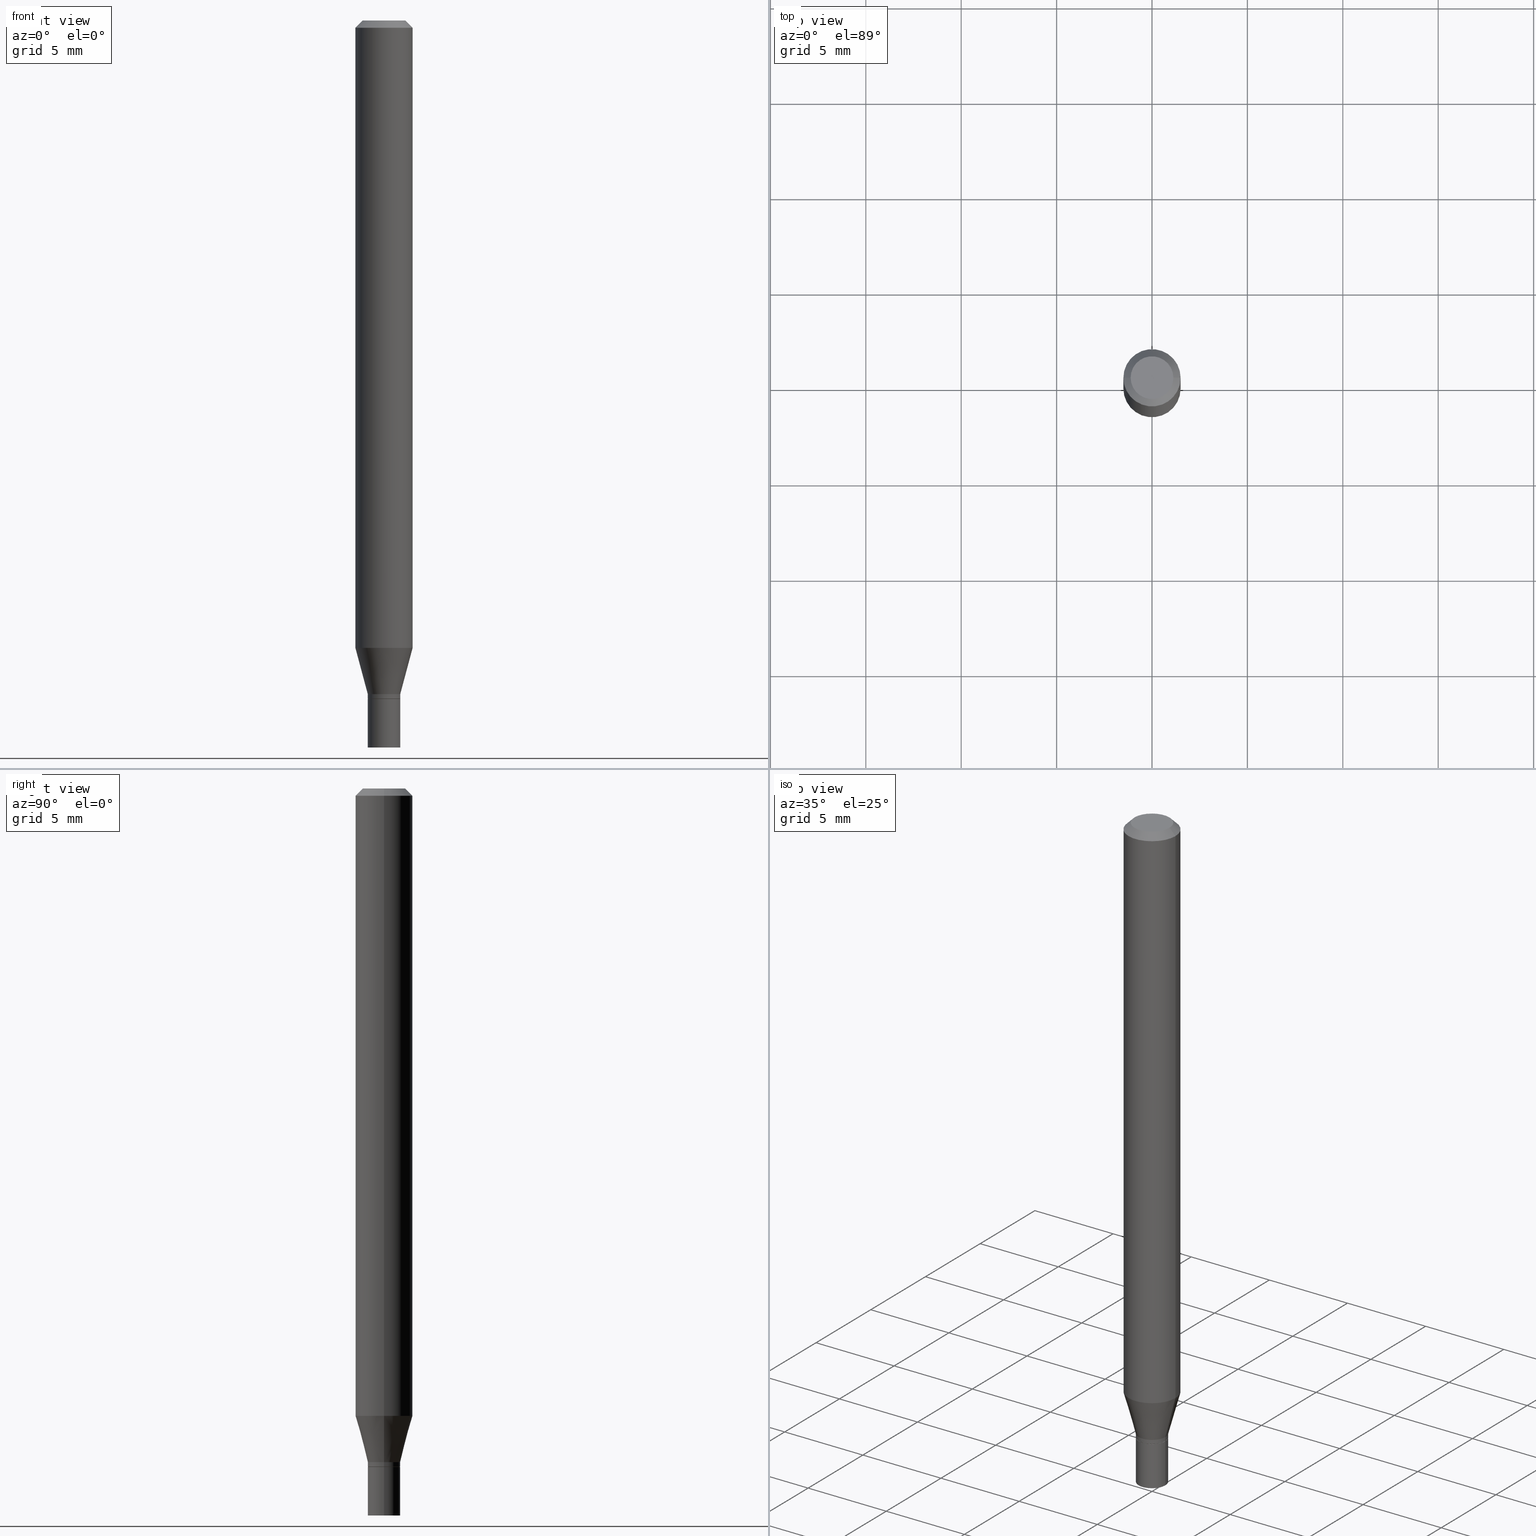
[diagram: canonical four-view strip — front | top / right | iso, engineering-drawing reading convention]
A machine part, canonical four-view strip (front | top / right | iso — engineering-drawing reading convention). The complete STEP part file that produces these views, byte-faithful:
ISO-10303-21;
HEADER;
FILE_DESCRIPTION (( 'STEP AP203' ),
    '1' );
FILE_NAME ('09287.STEP',
    '2024-03-14T18:21:10',
    ( '' ),
    ( '' ),
    'SwSTEP 2.0',
    'SolidWorks 2023',
    '' );
FILE_SCHEMA (( 'CONFIG_CONTROL_DESIGN' ));
ENDSEC;

DATA;
#1 = DIRECTION ( 'NONE',  ( 1.000000000000000000, -6.982962677686265922E-15, 4.876176775795935793E-29 ) ) ;
#2 = FACE_OUTER_BOUND ( 'NONE', #123, .T. ) ;
#3 = CONICAL_SURFACE ( 'NONE', #294, 0.05904999999999999832, 0.7853981633974551624 ) ;
#4 = CARTESIAN_POINT ( 'NONE',  ( 3.422678141136716546E-29, -4.886677281844865272E-15, -1.399599999999999733 ) ) ;
#5 = PRODUCT_DEFINITION_SHAPE ( 'NONE', 'NONE',  #29 ) ;
#6 = DIRECTION ( 'NONE',  ( 1.000000000000000000, -6.982962677686279332E-15, 0.000000000000000000 ) ) ;
#7 = DIRECTION ( 'NONE',  ( 1.000000000000000000, -6.982962677686265922E-15, 4.876176775795935793E-29 ) ) ;
#8 = AXIS2_PLACEMENT_3D ( 'NONE', #343, #232, #301 ) ;
#9 = FACE_OUTER_BOUND ( 'NONE', #315, .T. ) ;
#10 = CC_DESIGN_APPROVAL ( #362, ( #35 ) ) ;
#11 = CARTESIAN_POINT ( 'NONE',  ( 3.668203209277705088E-31, -5.237222008264718399E-17, -0.01499999999999999944 ) ) ;
#12 = VERTEX_POINT ( 'NONE', #319 ) ;
#13 = LINE ( 'NONE', #340, #270 ) ;
#14 = PRODUCT ( '09287', '09287', '', ( #283 ) ) ;
#15 = PERSON_AND_ORGANIZATION ( #167, #175 ) ;
#16 = AXIS2_PLACEMENT_3D ( 'NONE', #265, #118, #443 ) ;
#17 = DIRECTION ( 'NONE',  ( 1.000000000000000000, -6.982962677686264344E-15, 0.000000000000000000 ) ) ;
#18 = ORIENTED_EDGE ( 'NONE', *, *, #102, .T. ) ;
#19 = APPROVAL_DATE_TIME ( #57, #362 ) ;
#20 = CARTESIAN_POINT ( 'NONE',  ( 3.075995059520799729E-16, 0.04404999999999999888, -2.547080602766185685E-16 ) ) ;
#21 = ORIENTED_EDGE ( 'NONE', *, *, #159, .F. ) ;
#22 = COORDINATED_UNIVERSAL_TIME_OFFSET ( 5, 0, .BEHIND. ) ;
#23 = CARTESIAN_POINT ( 'NONE',  ( -0.05904999999999999832, -1.866401217467881029E-15, -0.01499999999999999944 ) ) ;
#24 = VERTEX_POINT ( 'NONE', #247 ) ;
#25 = COORDINATED_UNIVERSAL_TIME_OFFSET ( 5, 0, .BEHIND. ) ;
#26 = AXIS2_PLACEMENT_3D ( 'NONE', #164, #97, #386 ) ;
#27 = DIRECTION ( 'NONE',  ( 0.2588190451025211836, 1.565188264969622559E-15, 0.9659258262890679791 ) ) ;
#28 = DIRECTION ( 'NONE',  ( -2.438088387897960049E-29, 3.491481338843145188E-15, 1.000000000000000000 ) ) ;
#29 = PRODUCT_DEFINITION ( 'UNKNOWN', '', #35, #401 ) ;
#30 = ORIENTED_EDGE ( 'NONE', *, *, #466, .T. ) ;
#31 = PLANE ( 'NONE',  #399 ) ;
#32 = ORIENTED_EDGE ( 'NONE', *, *, #235, .T. ) ;
#33 = DIRECTION ( 'NONE',  ( -2.445468806185136597E-29, 3.491481338843145583E-15, 1.000000000000000000 ) ) ;
#34 = AXIS2_PLACEMENT_3D ( 'NONE', #182, #396, #104 ) ;
#35 = PRODUCT_DEFINITION_FORMATION_WITH_SPECIFIED_SOURCE ( 'ANY', '', #14, .NOT_KNOWN. ) ;
#36 = DIRECTION ( 'NONE',  ( 0.7071067811869518049, -2.468850131086492060E-15, 0.7071067811861430075 ) ) ;
#37 = CC_DESIGN_DATE_AND_TIME_ASSIGNMENT ( #246, #84, ( #295 ) ) ;
#38 = CARTESIAN_POINT ( 'NONE',  ( -0.03344999999999965362, -4.615482515880222190E-15, -1.390000000000000124 ) ) ;
#39 = DIRECTION ( 'NONE',  ( 1.000000000000000000, -6.982962677686265133E-15, 0.000000000000000000 ) ) ;
#40 = CIRCLE ( 'NONE', #157, 0.03295000000000000012 ) ;
#41 = AXIS2_PLACEMENT_3D ( 'NONE', #222, #138, #290 ) ;
#42 = DIRECTION ( 'NONE',  ( 1.000000000000000000, -6.982962677686273021E-15, 0.000000000000000000 ) ) ;
#43 = CC_DESIGN_DATE_AND_TIME_ASSIGNMENT ( #50, #312, ( #29 ) ) ;
#44 = DIRECTION ( 'NONE',  ( -2.445468806185136597E-29, 3.491481338843145583E-15, 1.000000000000000000 ) ) ;
#45 = EDGE_CURVE ( 'NONE', #303, #284, #358, .T. ) ;
#46 = CLOSED_SHELL ( 'NONE', ( #354, #196, #257, #300 ) ) ;
#47 = CARTESIAN_POINT ( 'NONE',  ( 3.165560326472339188E-29, -4.519581185785793570E-15, -1.294459499326235941 ) ) ;
#48 = ORIENTED_EDGE ( 'NONE', *, *, #248, .T. ) ;
#49 = CARTESIAN_POINT ( 'NONE',  ( 0.000000000000000000, 0.000000000000000000, 0.000000000000000000 ) ) ;
#50 = DATE_AND_TIME ( #416, #119 ) ;
#51 = ORIENTED_EDGE ( 'NONE', *, *, #316, .F. ) ;
#52 = AXIS2_PLACEMENT_3D ( 'NONE', #421, #243, #285 ) ;
#53 = VECTOR ( 'NONE', #465, 39.37007874015748143 ) ;
#54 = DIRECTION ( 'NONE',  ( 1.000000000000000000, -6.982962677686266711E-15, 0.000000000000000000 ) ) ;
#55 = ORIENTED_EDGE ( 'NONE', *, *, #56, .F. ) ;
#56 = EDGE_CURVE ( 'NONE', #163, #181, #135, .T. ) ;
#57 = DATE_AND_TIME ( #124, #447 ) ;
#58 = ORIENTED_EDGE ( 'NONE', *, *, #76, .F. ) ;
#59 = EDGE_CURVE ( 'NONE', #352, #382, #398, .T. ) ;
#60 = APPROVAL_STATUS ( 'not_yet_approved' ) ;
#61 = DIRECTION ( 'NONE',  ( -2.445468806185136597E-29, 3.491481338843145583E-15, 1.000000000000000000 ) ) ;
#62 = EDGE_LOOP ( 'NONE', ( #387, #211, #402, #251 ) ) ;
#63 = DIRECTION ( 'NONE',  ( -2.445468806185136877E-29, 3.491481338843145188E-15, 1.000000000000000000 ) ) ;
#64 = CIRCLE ( 'NONE', #413, 0.05904999999999999832 ) ;
#65 = ORIENTED_EDGE ( 'NONE', *, *, #236, .T. ) ;
#66 = ORIENTED_EDGE ( 'NONE', *, *, #248, .F. ) ;
#67 = CARTESIAN_POINT ( 'NONE',  ( 0.03345000000000000057, -5.120257383413471916E-15, -1.399599999999999955 ) ) ;
#68 = DIRECTION ( 'NONE',  ( 1.000000000000000000, -6.982962677686265922E-15, 4.888540261209747396E-29 ) ) ;
#69 = CONICAL_SURFACE ( 'NONE', #174, 0.03344999999999965362, 0.2617993877991499074 ) ;
#70 = FACE_OUTER_BOUND ( 'NONE', #460, .T. ) ;
#71 = CARTESIAN_POINT ( 'NONE',  ( 3.399201640597340139E-29, -4.853159060991973192E-15, -1.390000000000000124 ) ) ;
#72 = CARTESIAN_POINT ( 'NONE',  ( 0.03345000000000000057, -5.470802109833324821E-15, -1.500000000000000222 ) ) ;
#73 = CIRCLE ( 'NONE', #437, 0.03345000000000019486 ) ;
#74 = APPLICATION_CONTEXT ( 'configuration controlled 3d designs of mechanical parts and assemblies' ) ;
#75 = DIRECTION ( 'NONE',  ( -2.445468806185136597E-29, 3.491481338843145583E-15, 1.000000000000000000 ) ) ;
#76 = EDGE_CURVE ( 'NONE', #382, #228, #459, .T. ) ;
#77 = ORIENTED_EDGE ( 'NONE', *, *, #159, .T. ) ;
#78 = CYLINDRICAL_SURFACE ( 'NONE', #151, 0.03344999999999992424 ) ;
#79 = ORIENTED_EDGE ( 'NONE', *, *, #347, .T. ) ;
#80 = CC_DESIGN_PERSON_AND_ORGANIZATION_ASSIGNMENT ( #89, #384, ( #35 ) ) ;
#81 = CIRCLE ( 'NONE', #345, 0.05904999999999999832 ) ;
#82 = ORIENTED_EDGE ( 'NONE', *, *, #139, .F. ) ;
#83 = ADVANCED_FACE ( 'NONE', ( #311 ), #207, .F. ) ;
#84 = DATE_TIME_ROLE ( 'classification_date' ) ;
#85 = VERTEX_POINT ( 'NONE', #125 ) ;
#86 = COORDINATED_UNIVERSAL_TIME_OFFSET ( 5, 0, .BEHIND. ) ;
#87 = DIRECTION ( 'NONE',  ( -2.445468806185136877E-29, 3.491481338843145188E-15, 1.000000000000000000 ) ) ;
#88 = ORIENTED_EDGE ( 'NONE', *, *, #322, .F. ) ;
#89 = PERSON_AND_ORGANIZATION ( #167, #175 ) ;
#90 = AXIS2_PLACEMENT_3D ( 'NONE', #195, #224, #7 ) ;
#91 = LOCAL_TIME ( 14, 21, 10.00000000000000000, #22 ) ;
#92 = EDGE_LOOP ( 'NONE', ( #282, #77, #419, #255 ) ) ;
#93 = PERSON_AND_ORGANIZATION_ROLE ( 'creator' ) ;
#94 = CARTESIAN_POINT ( 'NONE',  ( -0.03344999999999965362, -4.357744108099838923E-15, -1.390000000000000124 ) ) ;
#95 = ORIENTED_EDGE ( 'NONE', *, *, #96, .T. ) ;
#96 = EDGE_CURVE ( 'NONE', #346, #12, #40, .T. ) ;
#97 = DIRECTION ( 'NONE',  ( -2.445468806185136597E-29, 3.491481338843145583E-15, 1.000000000000000000 ) ) ;
#98 = ORIENTED_EDGE ( 'NONE', *, *, #148, .F. ) ;
#99 = CONICAL_SURFACE ( 'NONE', #16, 0.03295000000000000012, 0.7853981633980202659 ) ;
#100 = AXIS2_PLACEMENT_3D ( 'NONE', #281, #412, #453 ) ;
#101 = ORIENTED_EDGE ( 'NONE', *, *, #390, .T. ) ;
#102 = EDGE_CURVE ( 'NONE', #228, #183, #200, .T. ) ;
#103 = DIRECTION ( 'NONE',  ( -2.445468806185136597E-29, 3.491481338843145583E-15, 1.000000000000000000 ) ) ;
#104 = DIRECTION ( 'NONE',  ( 1.000000000000000000, -6.982962677686265133E-15, 0.000000000000000000 ) ) ;
#105 = CARTESIAN_POINT ( 'NONE',  ( -0.03344999999999992424, 2.376765451117529739E-16, -1.645383787690262425E-30 ) ) ;
#106 = VECTOR ( 'NONE', #332, 39.37007874015748143 ) ;
#107 = DIRECTION ( 'NONE',  ( -2.445468806185136597E-29, 3.491481338843145583E-15, 1.000000000000000000 ) ) ;
#108 = CC_DESIGN_PERSON_AND_ORGANIZATION_ASSIGNMENT ( #420, #206, ( #295 ) ) ;
#109 = DIRECTION ( 'NONE',  ( 1.000000000000000000, -6.982962677686267499E-15, 4.876176775795936353E-29 ) ) ;
#110 = CARTESIAN_POINT ( 'NONE',  ( -0.03295000000000000012, -4.649904223237801601E-15, -1.399599999999999733 ) ) ;
#111 = UNCERTAINTY_MEASURE_WITH_UNIT (LENGTH_MEASURE( 1.000000000000000082E-05 ), #229, 'distance_accuracy_value', 'NONE');
#112 = DIRECTION ( 'NONE',  ( -2.445468806185136597E-29, 3.491481338843145583E-15, 1.000000000000000000 ) ) ;
#113 = VERTEX_POINT ( 'NONE', #423 ) ;
#114 = FACE_OUTER_BOUND ( 'NONE', #115, .T. ) ;
#115 = EDGE_LOOP ( 'NONE', ( #240, #95, #216, #455 ) ) ;
#116 = VERTEX_POINT ( 'NONE', #94 ) ;
#117 = AXIS2_PLACEMENT_3D ( 'NONE', #380, #176, #276 ) ;
#118 = DIRECTION ( 'NONE',  ( -2.445468806185136597E-29, 3.491481338843145583E-15, 1.000000000000000000 ) ) ;
#119 = LOCAL_TIME ( 14, 21, 10.00000000000000000, #374 ) ;
#120 = ORIENTED_EDGE ( 'NONE', *, *, #148, .T. ) ;
#121 = PERSON_AND_ORGANIZATION ( #167, #175 ) ;
#122 = DIRECTION ( 'NONE',  ( -2.445468806185136597E-29, 3.491481338843145583E-15, 1.000000000000000000 ) ) ;
#123 = EDGE_LOOP ( 'NONE', ( #66, #272, #277, #150 ) ) ;
#124 = CALENDAR_DATE ( 2024, 14, 3 ) ;
#125 = CARTESIAN_POINT ( 'NONE',  ( -0.04404999999999999888, 3.337856159934031180E-16, -2.018166146011582981E-16 ) ) ;
#126 = EDGE_LOOP ( 'NONE', ( #204, #269, #451, #360 ) ) ;
#127 = PERSON_AND_ORGANIZATION_ROLE ( 'design_owner' ) ;
#128 = FACE_OUTER_BOUND ( 'NONE', #379, .T. ) ;
#129 = ORIENTED_EDGE ( 'NONE', *, *, #146, .T. ) ;
#130 = SECURITY_CLASSIFICATION_LEVEL ( 'unclassified' ) ;
#131 = CARTESIAN_POINT ( 'NONE',  ( 3.668203209277704895E-29, -5.237222008264718177E-15, -1.500000000000000222 ) ) ;
#132 = CALENDAR_DATE ( 2024, 14, 3 ) ;
#133 = DIRECTION ( 'NONE',  ( -2.445468806185136877E-29, 3.491481338843145188E-15, 1.000000000000000000 ) ) ;
#134 = ORIENTED_EDGE ( 'NONE', *, *, #56, .T. ) ;
#135 = CIRCLE ( 'NONE', #190, 0.05904999999999999832 ) ;
#136 = CYLINDRICAL_SURFACE ( 'NONE', #335, 0.03344999999999992424 ) ;
#137 = CIRCLE ( 'NONE', #26, 0.03344999999999965362 ) ;
#138 = DIRECTION ( 'NONE',  ( 2.438088387897960049E-29, -3.491481338843145188E-15, -1.000000000000000000 ) ) ;
#139 = EDGE_CURVE ( 'NONE', #116, #303, #309, .T. ) ;
#140 = LINE ( 'NONE', #184, #106 ) ;
#141 = DIRECTION ( 'NONE',  ( -2.445468806185136597E-29, 3.491481338843145583E-15, 1.000000000000000000 ) ) ;
#142 = ADVANCED_FACE ( 'NONE', ( #448 ), #250, .T. ) ;
#143 = AXIS2_PLACEMENT_3D ( 'NONE', #361, #33, #68 ) ;
#144 = DIMENSIONAL_EXPONENTS ( 1.000000000000000000, 0.000000000000000000, 0.000000000000000000, 0.000000000000000000, 0.000000000000000000, 0.000000000000000000, 0.000000000000000000 ) ;
#145 = LINE ( 'NONE', #38, #432 ) ;
#146 = EDGE_CURVE ( 'NONE', #303, #116, #137, .T. ) ;
#147 = LENGTH_MEASURE_WITH_UNIT ( LENGTH_MEASURE( 0.02539999999999999897 ), #153 );
#148 = EDGE_CURVE ( 'NONE', #12, #346, #214, .T. ) ;
#149 = FACE_OUTER_BOUND ( 'NONE', #328, .T. ) ;
#150 = ORIENTED_EDGE ( 'NONE', *, *, #347, .F. ) ;
#151 = AXIS2_PLACEMENT_3D ( 'NONE', #49, #405, #192 ) ;
#152 = EDGE_CURVE ( 'NONE', #183, #228, #225, .T. ) ;
#153 =( LENGTH_UNIT ( ) NAMED_UNIT ( * ) SI_UNIT ( $, .METRE. ) );
#154 = ORIENTED_EDGE ( 'NONE', *, *, #322, .T. ) ;
#155 = DIRECTION ( 'NONE',  ( -2.445468806185136597E-29, 3.491481338843145583E-15, 1.000000000000000000 ) ) ;
#156 = DIRECTION ( 'NONE',  ( 1.000000000000000000, -6.982962677686266711E-15, 0.000000000000000000 ) ) ;
#157 = AXIS2_PLACEMENT_3D ( 'NONE', #344, #61, #17 ) ;
#158 = VECTOR ( 'NONE', #445, 39.37007874015748143 ) ;
#159 = EDGE_CURVE ( 'NONE', #113, #163, #409, .T. ) ;
#160 = APPROVAL_DATE_TIME ( #317, #375 ) ;
#161 =( GEOMETRIC_REPRESENTATION_CONTEXT ( 3 ) GLOBAL_UNCERTAINTY_ASSIGNED_CONTEXT ( ( #111 ) ) GLOBAL_UNIT_ASSIGNED_CONTEXT ( ( #229, #304, #441 ) ) REPRESENTATION_CONTEXT ( 'NONE', 'WORKASPACE' ) );
#162 = DIRECTION ( 'NONE',  ( -2.445468806185136597E-29, 3.491481338843145583E-15, 1.000000000000000000 ) ) ;
#163 = VERTEX_POINT ( 'NONE', #23 ) ;
#164 = CARTESIAN_POINT ( 'NONE',  ( 3.399201640597340139E-29, -4.853159060991973192E-15, -1.390000000000000124 ) ) ;
#165 = EDGE_LOOP ( 'NONE', ( #129, #48, #463, #410 ) ) ;
#166 = MANIFOLD_SOLID_BREP ( 'Body-Move/Copy2[1]', #46 ) ;
#167 = PERSON ( 'UNSPECIFIED', 'UNSPECIFIED', 'UNSPECIFIED', ('UNSPECIFIED'), ('UNSPECIFIED'), ('UNSPECIFIED') ) ;
#168 = APPROVAL_ROLE ( '' ) ;
#169 = DIRECTION ( 'NONE',  ( -2.445468806185136597E-29, 3.491481338843145583E-15, 1.000000000000000000 ) ) ;
#170 = ORIENTED_EDGE ( 'NONE', *, *, #102, .F. ) ;
#171 = APPROVAL_STATUS ( 'not_yet_approved' ) ;
#172 = EDGE_CURVE ( 'NONE', #284, #181, #239, .T. ) ;
#173 = MANIFOLD_SOLID_BREP ( 'Body-Move/Copy2[2]', #260 ) ;
#174 = AXIS2_PLACEMENT_3D ( 'NONE', #71, #141, #39 ) ;
#175 = ORGANIZATION ( 'UNSPECIFIED', 'UNSPECIFIED', '' ) ;
#176 = DIRECTION ( 'NONE',  ( -2.445468806185136597E-29, 3.491481338843145583E-15, 1.000000000000000000 ) ) ;
#177 = CARTESIAN_POINT ( 'NONE',  ( 3.668203209277705088E-31, -5.237222008264718399E-17, -0.01499999999999999944 ) ) ;
#178 = PERSON_AND_ORGANIZATION_ROLE ( 'creator' ) ;
#179 = EDGE_CURVE ( 'NONE', #24, #306, #310, .T. ) ;
#180 = DIRECTION ( 'NONE',  ( 1.000000000000000000, -6.982962677686279332E-15, 0.000000000000000000 ) ) ;
#181 = VERTEX_POINT ( 'NONE', #457 ) ;
#182 = CARTESIAN_POINT ( 'NONE',  ( 3.399201640597340139E-29, -4.853159060991973192E-15, -1.390000000000000124 ) ) ;
#183 = VERTEX_POINT ( 'NONE', #318 ) ;
#184 = CARTESIAN_POINT ( 'NONE',  ( 0.05904999999999999832, -4.574846268510561447E-16, -0.01499999999999999944 ) ) ;
#185 = AXIS2_PLACEMENT_3D ( 'NONE', #357, #28, #203 ) ;
#186 = CARTESIAN_POINT ( 'NONE',  ( -0.03345000000000019486, -4.647254996063690400E-15, -1.399100000000000010 ) ) ;
#187 = FACE_OUTER_BOUND ( 'NONE', #62, .T. ) ;
#188 = ADVANCED_FACE ( 'NONE', ( #128 ), #417, .F. ) ;
#189 = LINE ( 'NONE', #105, #53 ) ;
#190 = AXIS2_PLACEMENT_3D ( 'NONE', #177, #323, #458 ) ;
#191 = CIRCLE ( 'NONE', #143, 0.04404999999999999888 ) ;
#192 = DIRECTION ( 'NONE',  ( 1.000000000000000000, -6.982962677686267499E-15, 4.876176775795936353E-29 ) ) ;
#193 = CARTESIAN_POINT ( 'NONE',  ( 4.935362355770148873E-45, -7.046389437484354328E-31, -2.018166146011560548E-16 ) ) ;
#194 = CONICAL_SURFACE ( 'NONE', #425, 0.03295000000000000012, 0.7853981633980202659 ) ;
#195 = CARTESIAN_POINT ( 'NONE',  ( 0.000000000000000000, 0.000000000000000000, 0.000000000000000000 ) ) ;
#196 = ADVANCED_FACE ( 'NONE', ( #349 ), #31, .F. ) ;
#197 = CARTESIAN_POINT ( 'NONE',  ( -0.03345000000000000057, -4.824273099943039539E-15, -1.500000000000000222 ) ) ;
#198 = PERSON_AND_ORGANIZATION ( #167, #175 ) ;
#199 = ORIENTED_EDGE ( 'NONE', *, *, #235, .F. ) ;
#200 = CIRCLE ( 'NONE', #52, 0.03345000000000000057 ) ;
#201 = VECTOR ( 'NONE', #435, 39.37007874015748854 ) ;
#202 = APPROVAL_DATE_TIME ( #351, #418 ) ;
#203 = DIRECTION ( 'NONE',  ( 1.000000000000000000, -6.982962677686265922E-15, 4.876176775795935793E-29 ) ) ;
#204 = ORIENTED_EDGE ( 'NONE', *, *, #179, .T. ) ;
#205 = ADVANCED_FACE ( 'NONE', ( #256 ), #136, .T. ) ;
#206 = PERSON_AND_ORGANIZATION_ROLE ( 'classification_officer' ) ;
#207 = PLANE ( 'NONE',  #292 ) ;
#208 = ORIENTED_EDGE ( 'NONE', *, *, #331, .T. ) ;
#209 = APPROVAL_STATUS ( 'not_yet_approved' ) ;
#210 = DIRECTION ( 'NONE',  ( 1.000000000000000000, -6.982962677686265133E-15, 0.000000000000000000 ) ) ;
#211 = ORIENTED_EDGE ( 'NONE', *, *, #59, .T. ) ;
#212 = ADVANCED_FACE ( 'NONE', ( #2 ), #266, .T. ) ;
#213 = CALENDAR_DATE ( 2024, 14, 3 ) ;
#214 = CIRCLE ( 'NONE', #117, 0.03295000000000000012 ) ;
#215 = CARTESIAN_POINT ( 'NONE',  ( -0.05904999999999999832, 4.195754854663391478E-16, -2.904631170795521892E-30 ) ) ;
#216 = ORIENTED_EDGE ( 'NONE', *, *, #305, .T. ) ;
#217 = FACE_OUTER_BOUND ( 'NONE', #165, .T. ) ;
#218 = ORIENTED_EDGE ( 'NONE', *, *, #259, .T. ) ;
#219 = DIRECTION ( 'NONE',  ( -0.2588190451025211836, 5.211531920934547886E-15, 0.9659258262890679791 ) ) ;
#220 = LINE ( 'NONE', #365, #262 ) ;
#221 = CONICAL_SURFACE ( 'NONE', #8, 0.05904999999999999832, 0.7853981633974551624 ) ;
#222 = CARTESIAN_POINT ( 'NONE',  ( 2.335801015686397760E-16, 0.03344999999999511558, -1.399599999999999955 ) ) ;
#223 = CARTESIAN_POINT ( 'NONE',  ( -0.03295000000000000012, -4.652553450411912013E-15, -1.399599999999999733 ) ) ;
#224 = DIRECTION ( 'NONE',  ( -2.445468806185136597E-29, 3.491481338843145583E-15, 1.000000000000000000 ) ) ;
#225 = CIRCLE ( 'NONE', #100, 0.03345000000000000057 ) ;
#226 = APPROVAL_PERSON_ORGANIZATION ( #324, #418, #377 ) ;
#227 = CYLINDRICAL_SURFACE ( 'NONE', #90, 0.03345000000000000057 ) ;
#228 = VERTEX_POINT ( 'NONE', #67 ) ;
#229 =( CONVERSION_BASED_UNIT ( 'INCH', #147 ) LENGTH_UNIT ( ) NAMED_UNIT ( #144 ) );
#230 = ADVANCED_FACE ( 'NONE', ( #258 ), #194, .T. ) ;
#231 = ORIENTED_EDGE ( 'NONE', *, *, #305, .F. ) ;
#232 = DIRECTION ( 'NONE',  ( 2.445468806185136597E-29, -3.491481338843145583E-15, -1.000000000000000000 ) ) ;
#233 = AXIS2_PLACEMENT_3D ( 'NONE', #193, #112, #299 ) ;
#234 = ADVANCED_FACE ( 'NONE', ( #217 ), #69, .T. ) ;
#235 = EDGE_CURVE ( 'NONE', #442, #181, #140, .T. ) ;
#236 = EDGE_CURVE ( 'NONE', #346, #306, #264, .T. ) ;
#237 = DIRECTION ( 'NONE',  ( 0.000000000000000000, 0.000000000000000000, 1.000000000000000000 ) ) ;
#238 = EDGE_CURVE ( 'NONE', #306, #116, #189, .T. ) ;
#239 = LINE ( 'NONE', #321, #253 ) ;
#240 = ORIENTED_EDGE ( 'NONE', *, *, #236, .F. ) ;
#241 = APPROVAL_PERSON_ORGANIZATION ( #198, #375, #168 ) ;
#242 = CALENDAR_DATE ( 2024, 14, 3 ) ;
#243 = DIRECTION ( 'NONE',  ( -2.445468806185136597E-29, 3.491481338843145583E-15, 1.000000000000000000 ) ) ;
#244 = ADVANCED_FACE ( 'NONE', ( #397 ), #3, .T. ) ;
#245 = ORIENTED_EDGE ( 'NONE', *, *, #172, .T. ) ;
#246 = DATE_AND_TIME ( #242, #279 ) ;
#247 = CARTESIAN_POINT ( 'NONE',  ( 0.03345000000000019486, -5.118511642744051990E-15, -1.399100000000000010 ) ) ;
#248 = EDGE_CURVE ( 'NONE', #116, #113, #145, .T. ) ;
#249 = APPLICATION_PROTOCOL_DEFINITION ( 'international standard', 'config_control_design', 1994, #426 ) ;
#250 = CYLINDRICAL_SURFACE ( 'NONE', #320, 0.05904999999999999832 ) ;
#251 = ORIENTED_EDGE ( 'NONE', *, *, #152, .F. ) ;
#252 = VECTOR ( 'NONE', #133, 39.37007874015748143 ) ;
#253 = VECTOR ( 'NONE', #63, 39.37007874015748143 ) ;
#254 = DIRECTION ( 'NONE',  ( -2.445468806185136597E-29, 3.491481338843145583E-15, 1.000000000000000000 ) ) ;
#255 = ORIENTED_EDGE ( 'NONE', *, *, #172, .F. ) ;
#256 = FACE_OUTER_BOUND ( 'NONE', #126, .T. ) ;
#257 = ADVANCED_FACE ( 'NONE', ( #187 ), #289, .T. ) ;
#258 = FACE_OUTER_BOUND ( 'NONE', #339, .T. ) ;
#259 = EDGE_CURVE ( 'NONE', #24, #303, #333, .T. ) ;
#260 = CLOSED_SHELL ( 'NONE', ( #205, #230, #383, #142, #234, #212, #381, #244, #83, #188, #329, #376 ) ) ;
#261 = DIRECTION ( 'NONE',  ( -1.000000000000000000, 6.982962677686266711E-15, 0.000000000000000000 ) ) ;
#262 = VECTOR ( 'NONE', #36, 39.37007874015748854 ) ;
#263 = DIRECTION ( 'NONE',  ( 1.000000000000000000, -6.982962677686266711E-15, 0.000000000000000000 ) ) ;
#264 = LINE ( 'NONE', #223, #201 ) ;
#265 = CARTESIAN_POINT ( 'NONE',  ( 3.422678141136716546E-29, -4.886677281844865272E-15, -1.399599999999999733 ) ) ;
#266 = CONICAL_SURFACE ( 'NONE', #34, 0.03344999999999965362, 0.2617993877991499074 ) ;
#267 = EDGE_LOOP ( 'NONE', ( #308, #422 ) ) ;
#268 = DIRECTION ( 'NONE',  ( 1.000000000000000000, -6.982962677686273021E-15, 0.000000000000000000 ) ) ;
#269 = ORIENTED_EDGE ( 'NONE', *, *, #238, .T. ) ;
#270 = VECTOR ( 'NONE', #436, 39.37007874015748143 ) ;
#271 = FACE_OUTER_BOUND ( 'NONE', #326, .T. ) ;
#272 = ORIENTED_EDGE ( 'NONE', *, *, #139, .T. ) ;
#273 = DIRECTION ( 'NONE',  ( 1.000000000000000000, -6.982962677686266711E-15, 4.876176775795936353E-29 ) ) ;
#274 = EDGE_LOOP ( 'NONE', ( #350, #355, #218, #82 ) ) ;
#275 = CARTESIAN_POINT ( 'NONE',  ( 0.000000000000000000, 0.000000000000000000, 0.000000000000000000 ) ) ;
#276 = DIRECTION ( 'NONE',  ( 1.000000000000000000, -6.982962677686264344E-15, 0.000000000000000000 ) ) ;
#277 = ORIENTED_EDGE ( 'NONE', *, *, #45, .T. ) ;
#278 = CIRCLE ( 'NONE', #341, 0.03345000000000000057 ) ;
#279 = LOCAL_TIME ( 14, 21, 10.00000000000000000, #86 ) ;
#280 = APPLICATION_PROTOCOL_DEFINITION ( 'international standard', 'config_control_design', 1994, #74 ) ;
#281 = CARTESIAN_POINT ( 'NONE',  ( 3.422678141136717106E-29, -4.886677281844866061E-15, -1.399599999999999955 ) ) ;
#282 = ORIENTED_EDGE ( 'NONE', *, *, #336, .T. ) ;
#283 = MECHANICAL_CONTEXT ( 'NONE', #426, 'mechanical' ) ;
#284 = VERTEX_POINT ( 'NONE', #433 ) ;
#285 = DIRECTION ( 'NONE',  ( 1.000000000000000000, -6.982962677686279332E-15, 0.000000000000000000 ) ) ;
#286 = EDGE_LOOP ( 'NONE', ( #154, #440 ) ) ;
#287 = CIRCLE ( 'NONE', #369, 0.05904999999999999832 ) ;
#288 = LOCAL_TIME ( 14, 21, 10.00000000000000000, #25 ) ;
#289 = CYLINDRICAL_SURFACE ( 'NONE', #454, 0.03345000000000000057 ) ;
#290 = DIRECTION ( 'NONE',  ( -1.000000000000000000, 6.982962677686265922E-15, -4.876176775795935793E-29 ) ) ;
#291 = DIRECTION ( 'NONE',  ( -2.445468806185136877E-29, 3.491481338843145188E-15, 1.000000000000000000 ) ) ;
#292 = AXIS2_PLACEMENT_3D ( 'NONE', #20, #450, #391 ) ;
#293 = DIRECTION ( 'NONE',  ( 2.445468806185136597E-29, -3.491481338843145583E-15, -1.000000000000000000 ) ) ;
#294 = AXIS2_PLACEMENT_3D ( 'NONE', #334, #293, #261 ) ;
#295 = SECURITY_CLASSIFICATION ( '', '', #130 ) ;
#296 = CARTESIAN_POINT ( 'NONE',  ( 3.576687321579069994E-29, -5.368277968210015545E-15, -1.500000000000000222 ) ) ;
#297 = PRODUCT_RELATED_PRODUCT_CATEGORY ( 'detail', '', ( #14 ) ) ;
#298 = EDGE_CURVE ( 'NONE', #442, #85, #191, .T. ) ;
#299 = DIRECTION ( 'NONE',  ( 1.000000000000000000, -6.982962677686265922E-15, 4.888540261209747396E-29 ) ) ;
#300 = ADVANCED_FACE ( 'NONE', ( #70 ), #330, .F. ) ;
#301 = DIRECTION ( 'NONE',  ( -1.000000000000000000, 6.982962677686266711E-15, 0.000000000000000000 ) ) ;
#302 = CC_DESIGN_APPROVAL ( #375, ( #295 ) ) ;
#303 = VERTEX_POINT ( 'NONE', #429 ) ;
#304 =( NAMED_UNIT ( * ) PLANE_ANGLE_UNIT ( ) SI_UNIT ( $, .RADIAN. ) );
#305 = EDGE_CURVE ( 'NONE', #12, #24, #220, .T. ) ;
#306 = VERTEX_POINT ( 'NONE', #186 ) ;
#307 = DIRECTION ( 'NONE',  ( -2.445468806185136597E-29, 3.491481338843145583E-15, 1.000000000000000000 ) ) ;
#308 = ORIENTED_EDGE ( 'NONE', *, *, #466, .F. ) ;
#309 = CIRCLE ( 'NONE', #406, 0.03344999999999965362 ) ;
#310 = CIRCLE ( 'NONE', #446, 0.03345000000000019486 ) ;
#311 = FACE_OUTER_BOUND ( 'NONE', #286, .T. ) ;
#312 = DATE_TIME_ROLE ( 'creation_date' ) ;
#313 = EDGE_CURVE ( 'NONE', #306, #24, #73, .T. ) ;
#314 = CARTESIAN_POINT ( 'NONE',  ( 0.000000000000000000, 0.000000000000000000, 0.000000000000000000 ) ) ;
#315 = EDGE_LOOP ( 'NONE', ( #30, #208, #170, #58 ) ) ;
#316 = EDGE_CURVE ( 'NONE', #85, #163, #337, .T. ) ;
#317 = DATE_AND_TIME ( #213, #91 ) ;
#318 = CARTESIAN_POINT ( 'NONE',  ( -0.03345000000000000057, -4.824273099943039539E-15, -1.399599999999999955 ) ) ;
#319 = CARTESIAN_POINT ( 'NONE',  ( 0.03295000000000000012, -5.116765902074627331E-15, -1.399599999999999733 ) ) ;
#320 = AXIS2_PLACEMENT_3D ( 'NONE', #314, #122, #273 ) ;
#321 = CARTESIAN_POINT ( 'NONE',  ( 0.05904999999999999832, -4.123439461173740327E-16, 2.879382386107500220E-30 ) ) ;
#322 = EDGE_CURVE ( 'NONE', #85, #442, #372, .T. ) ;
#323 = DIRECTION ( 'NONE',  ( -2.445468806185136597E-29, 3.491481338843145583E-15, 1.000000000000000000 ) ) ;
#324 = PERSON_AND_ORGANIZATION ( #167, #175 ) ;
#325 = CARTESIAN_POINT ( 'NONE',  ( 0.03345000000000000057, -2.335801015686056085E-16, 1.631081131503740528E-30 ) ) ;
#326 = EDGE_LOOP ( 'NONE', ( #21, #79, #245, #55 ) ) ;
#327 = DIRECTION ( 'NONE',  ( 1.000000000000000000, -6.982962677686264344E-15, 0.000000000000000000 ) ) ;
#328 = EDGE_LOOP ( 'NONE', ( #407, #32, #101, #51 ) ) ;
#329 = ADVANCED_FACE ( 'NONE', ( #114 ), #99, .T. ) ;
#330 = PLANE ( 'NONE',  #41 ) ;
#331 = EDGE_CURVE ( 'NONE', #352, #183, #13, .T. ) ;
#332 = DIRECTION ( 'NONE',  ( 0.7071067811865523467, -7.319954787623271823E-15, -0.7071067811865426878 ) ) ;
#333 = LINE ( 'NONE', #359, #464 ) ;
#334 = CARTESIAN_POINT ( 'NONE',  ( 3.668203209277705088E-31, -5.237222008264718399E-17, -0.01499999999999999944 ) ) ;
#335 = AXIS2_PLACEMENT_3D ( 'NONE', #430, #428, #109 ) ;
#336 = EDGE_CURVE ( 'NONE', #284, #113, #81, .T. ) ;
#337 = LINE ( 'NONE', #371, #158 ) ;
#338 = DIRECTION ( 'NONE',  ( 1.000000000000000000, -6.982962677686266711E-15, 4.876176775795936353E-29 ) ) ;
#339 = EDGE_LOOP ( 'NONE', ( #120, #65, #404, #231 ) ) ;
#340 = CARTESIAN_POINT ( 'NONE',  ( -0.03345000000000000057, 2.376765451117535162E-16, -1.645383787690265928E-30 ) ) ;
#341 = AXIS2_PLACEMENT_3D ( 'NONE', #438, #307, #6 ) ;
#342 = FACE_OUTER_BOUND ( 'NONE', #274, .T. ) ;
#343 = CARTESIAN_POINT ( 'NONE',  ( 3.668203209277705088E-31, -5.237222008264718399E-17, -0.01499999999999999944 ) ) ;
#344 = CARTESIAN_POINT ( 'NONE',  ( 3.422678141136716546E-29, -4.886677281844865272E-15, -1.399599999999999733 ) ) ;
#345 = AXIS2_PLACEMENT_3D ( 'NONE', #47, #75, #42 ) ;
#346 = VERTEX_POINT ( 'NONE', #110 ) ;
#347 = EDGE_CURVE ( 'NONE', #113, #284, #287, .T. ) ;
#348 = PERSON_AND_ORGANIZATION ( #167, #175 ) ;
#349 = FACE_OUTER_BOUND ( 'NONE', #267, .T. ) ;
#350 = ORIENTED_EDGE ( 'NONE', *, *, #238, .F. ) ;
#351 = DATE_AND_TIME ( #132, #288 ) ;
#352 = VERTEX_POINT ( 'NONE', #197 ) ;
#353 = CARTESIAN_POINT ( 'NONE',  ( 3.399201640597340139E-29, -4.853159060991973192E-15, -1.390000000000000124 ) ) ;
#354 = ADVANCED_FACE ( 'NONE', ( #9 ), #227, .T. ) ;
#355 = ORIENTED_EDGE ( 'NONE', *, *, #313, .T. ) ;
#356 = SHAPE_DEFINITION_REPRESENTATION ( #5, #364 ) ;
#357 = CARTESIAN_POINT ( 'NONE',  ( 3.422678141136717106E-29, -4.886677281844866061E-15, -1.399599999999999955 ) ) ;
#358 = LINE ( 'NONE', #385, #388 ) ;
#359 = CARTESIAN_POINT ( 'NONE',  ( 0.03344999999999992424, -2.335801015686051154E-16, 1.631081131503737025E-30 ) ) ;
#360 = ORIENTED_EDGE ( 'NONE', *, *, #259, .F. ) ;
#361 = CARTESIAN_POINT ( 'NONE',  ( 4.935362355770148873E-45, -7.046389437484354328E-31, -2.018166146011560548E-16 ) ) ;
#362 = APPROVAL ( #60, 'UNSPECIFIED' ) ;
#363 = APPROVAL_PERSON_ORGANIZATION ( #348, #362, #449 ) ;
#364 = ADVANCED_BREP_SHAPE_REPRESENTATION ( '09287', ( #166, #173, #415 ), #161 ) ;
#365 = CARTESIAN_POINT ( 'NONE',  ( 0.03295000000000000012, -5.116765902074627331E-15, -1.399599999999999733 ) ) ;
#366 = CARTESIAN_POINT ( 'NONE',  ( 3.421455406733624865E-29, -4.884931541175446135E-15, -1.399100000000000010 ) ) ;
#367 = DIRECTION ( 'NONE',  ( -2.445468806185136597E-29, 3.491481338843145583E-15, 1.000000000000000000 ) ) ;
#368 = CARTESIAN_POINT ( 'NONE',  ( 0.04404999999999999888, -3.798447818264464023E-16, -2.018166146011536389E-16 ) ) ;
#369 = AXIS2_PLACEMENT_3D ( 'NONE', #400, #373, #268 ) ;
#370 = CYLINDRICAL_SURFACE ( 'NONE', #394, 0.05904999999999999832 ) ;
#371 = CARTESIAN_POINT ( 'NONE',  ( -0.05904999999999999832, 3.599717260347268549E-16, -0.01499999999999999944 ) ) ;
#372 = CIRCLE ( 'NONE', #233, 0.04404999999999999888 ) ;
#373 = DIRECTION ( 'NONE',  ( -2.445468806185136597E-29, 3.491481338843145583E-15, 1.000000000000000000 ) ) ;
#374 = COORDINATED_UNIVERSAL_TIME_OFFSET ( 5, 0, .BEHIND. ) ;
#375 = APPROVAL ( #209, 'UNSPECIFIED' ) ;
#376 = ADVANCED_FACE ( 'NONE', ( #342 ), #78, .T. ) ;
#377 = APPROVAL_ROLE ( '' ) ;
#378 = CARTESIAN_POINT ( 'NONE',  ( 3.421455406733624865E-29, -4.884931541175446135E-15, -1.399100000000000010 ) ) ;
#379 = EDGE_LOOP ( 'NONE', ( #98, #392 ) ) ;
#380 = CARTESIAN_POINT ( 'NONE',  ( 3.422678141136716546E-29, -4.886677281844865272E-15, -1.399599999999999733 ) ) ;
#381 = ADVANCED_FACE ( 'NONE', ( #271 ), #370, .T. ) ;
#382 = VERTEX_POINT ( 'NONE', #72 ) ;
#383 = ADVANCED_FACE ( 'NONE', ( #149 ), #221, .T. ) ;
#384 = PERSON_AND_ORGANIZATION_ROLE ( 'design_supplier' ) ;
#385 = CARTESIAN_POINT ( 'NONE',  ( 0.03344999999999965362, -5.086739162560575892E-15, -1.390000000000000124 ) ) ;
#386 = DIRECTION ( 'NONE',  ( 1.000000000000000000, -6.982962677686265133E-15, 0.000000000000000000 ) ) ;
#387 = ORIENTED_EDGE ( 'NONE', *, *, #331, .F. ) ;
#388 = VECTOR ( 'NONE', #27, 39.37007874015748854 ) ;
#389 = VECTOR ( 'NONE', #87, 39.37007874015748143 ) ;
#390 = EDGE_CURVE ( 'NONE', #181, #163, #64, .T. ) ;
#391 = DIRECTION ( 'NONE',  ( -1.000000000000000000, 6.982962677686265922E-15, -4.876176775795935793E-29 ) ) ;
#392 = ORIENTED_EDGE ( 'NONE', *, *, #96, .F. ) ;
#393 = DIRECTION ( 'NONE',  ( -2.438088387897960049E-29, 3.491481338843145188E-15, 1.000000000000000000 ) ) ;
#394 = AXIS2_PLACEMENT_3D ( 'NONE', #403, #44, #338 ) ;
#395 = DIRECTION ( 'NONE',  ( 1.000000000000000000, -6.982962677686265922E-15, 4.876176775795935793E-29 ) ) ;
#396 = DIRECTION ( 'NONE',  ( -2.445468806185136597E-29, 3.491481338843145583E-15, 1.000000000000000000 ) ) ;
#397 = FACE_OUTER_BOUND ( 'NONE', #424, .T. ) ;
#398 = CIRCLE ( 'NONE', #431, 0.03345000000000000057 ) ;
#399 = AXIS2_PLACEMENT_3D ( 'NONE', #296, #393, #1 ) ;
#400 = CARTESIAN_POINT ( 'NONE',  ( 3.165560326472339188E-29, -4.519581185785793570E-15, -1.294459499326235941 ) ) ;
#401 = DESIGN_CONTEXT ( 'detailed design', #74, 'design' ) ;
#402 = ORIENTED_EDGE ( 'NONE', *, *, #76, .T. ) ;
#403 = CARTESIAN_POINT ( 'NONE',  ( 0.000000000000000000, 0.000000000000000000, 0.000000000000000000 ) ) ;
#404 = ORIENTED_EDGE ( 'NONE', *, *, #179, .F. ) ;
#405 = DIRECTION ( 'NONE',  ( -2.445468806185136597E-29, 3.491481338843145583E-15, 1.000000000000000000 ) ) ;
#406 = AXIS2_PLACEMENT_3D ( 'NONE', #353, #162, #210 ) ;
#407 = ORIENTED_EDGE ( 'NONE', *, *, #298, .F. ) ;
#408 = ORIENTED_EDGE ( 'NONE', *, *, #152, .T. ) ;
#409 = LINE ( 'NONE', #215, #389 ) ;
#410 = ORIENTED_EDGE ( 'NONE', *, *, #45, .F. ) ;
#411 = PERSON_AND_ORGANIZATION ( #167, #175 ) ;
#412 = DIRECTION ( 'NONE',  ( -2.445468806185136597E-29, 3.491481338843145583E-15, 1.000000000000000000 ) ) ;
#413 = AXIS2_PLACEMENT_3D ( 'NONE', #11, #155, #156 ) ;
#414 = ORIENTED_EDGE ( 'NONE', *, *, #316, .T. ) ;
#415 = AXIS2_PLACEMENT_3D ( 'NONE', #275, #237, #452 ) ;
#416 = CALENDAR_DATE ( 2024, 14, 3 ) ;
#417 = PLANE ( 'NONE',  #185 ) ;
#418 = APPROVAL ( #171, 'UNSPECIFIED' ) ;
#419 = ORIENTED_EDGE ( 'NONE', *, *, #390, .F. ) ;
#420 = PERSON_AND_ORGANIZATION ( #167, #175 ) ;
#421 = CARTESIAN_POINT ( 'NONE',  ( 3.422678141136717106E-29, -4.886677281844866061E-15, -1.399599999999999955 ) ) ;
#422 = ORIENTED_EDGE ( 'NONE', *, *, #59, .F. ) ;
#423 = CARTESIAN_POINT ( 'NONE',  ( -0.05904999999999999832, -4.100005700319454866E-15, -1.294459499326235941 ) ) ;
#424 = EDGE_LOOP ( 'NONE', ( #199, #88, #414, #134 ) ) ;
#425 = AXIS2_PLACEMENT_3D ( 'NONE', #4, #367, #327 ) ;
#426 = APPLICATION_CONTEXT ( 'configuration controlled 3d designs of mechanical parts and assemblies' ) ;
#427 = CC_DESIGN_SECURITY_CLASSIFICATION ( #295, ( #35 ) ) ;
#428 = DIRECTION ( 'NONE',  ( -2.445468806185136597E-29, 3.491481338843145583E-15, 1.000000000000000000 ) ) ;
#429 = CARTESIAN_POINT ( 'NONE',  ( 0.03344999999999965362, -5.086739162560575892E-15, -1.390000000000000124 ) ) ;
#430 = CARTESIAN_POINT ( 'NONE',  ( 0.000000000000000000, 0.000000000000000000, 0.000000000000000000 ) ) ;
#431 = AXIS2_PLACEMENT_3D ( 'NONE', #131, #254, #180 ) ;
#432 = VECTOR ( 'NONE', #219, 39.37007874015748854 ) ;
#433 = CARTESIAN_POINT ( 'NONE',  ( 0.05904999999999999832, -4.931925131903167702E-15, -1.294459499326235941 ) ) ;
#434 = CC_DESIGN_PERSON_AND_ORGANIZATION_ASSIGNMENT ( #121, #93, ( #35 ) ) ;
#435 = DIRECTION ( 'NONE',  ( -0.7071067811869518049, 7.493145998871813553E-15, 0.7071067811861430075 ) ) ;
#436 = DIRECTION ( 'NONE',  ( -2.445468806185136877E-29, 3.491481338843145188E-15, 1.000000000000000000 ) ) ;
#437 = AXIS2_PLACEMENT_3D ( 'NONE', #366, #107, #263 ) ;
#438 = CARTESIAN_POINT ( 'NONE',  ( 3.668203209277704895E-29, -5.237222008264718177E-15, -1.500000000000000222 ) ) ;
#439 = CC_DESIGN_APPROVAL ( #418, ( #29 ) ) ;
#440 = ORIENTED_EDGE ( 'NONE', *, *, #298, .T. ) ;
#441 =( NAMED_UNIT ( * ) SI_UNIT ( $, .STERADIAN. ) SOLID_ANGLE_UNIT ( ) );
#442 = VERTEX_POINT ( 'NONE', #368 ) ;
#443 = DIRECTION ( 'NONE',  ( 1.000000000000000000, -6.982962677686264344E-15, 0.000000000000000000 ) ) ;
#444 = CC_DESIGN_PERSON_AND_ORGANIZATION_ASSIGNMENT ( #15, #178, ( #29 ) ) ;
#445 = DIRECTION ( 'NONE',  ( -0.7071067811865523467, 2.468850131082307548E-15, -0.7071067811865426878 ) ) ;
#446 = AXIS2_PLACEMENT_3D ( 'NONE', #378, #169, #54 ) ;
#447 = LOCAL_TIME ( 14, 21, 10.00000000000000000, #456 ) ;
#448 = FACE_OUTER_BOUND ( 'NONE', #92, .T. ) ;
#449 = APPROVAL_ROLE ( '' ) ;
#450 = DIRECTION ( 'NONE',  ( 2.438088387897960049E-29, -3.491481338843145188E-15, -1.000000000000000000 ) ) ;
#451 = ORIENTED_EDGE ( 'NONE', *, *, #146, .F. ) ;
#452 = DIRECTION ( 'NONE',  ( 1.000000000000000000, 0.000000000000000000, 0.000000000000000000 ) ) ;
#453 = DIRECTION ( 'NONE',  ( 1.000000000000000000, -6.982962677686279332E-15, 0.000000000000000000 ) ) ;
#454 = AXIS2_PLACEMENT_3D ( 'NONE', #462, #103, #395 ) ;
#455 = ORIENTED_EDGE ( 'NONE', *, *, #313, .F. ) ;
#456 = COORDINATED_UNIVERSAL_TIME_OFFSET ( 5, 0, .BEHIND. ) ;
#457 = CARTESIAN_POINT ( 'NONE',  ( 0.05904999999999999832, -4.647161662000212105E-16, -0.01499999999999999944 ) ) ;
#458 = DIRECTION ( 'NONE',  ( 1.000000000000000000, -6.982962677686266711E-15, 0.000000000000000000 ) ) ;
#459 = LINE ( 'NONE', #325, #252 ) ;
#460 = EDGE_LOOP ( 'NONE', ( #18, #408 ) ) ;
#461 = CC_DESIGN_PERSON_AND_ORGANIZATION_ASSIGNMENT ( #411, #127, ( #14 ) ) ;
#462 = CARTESIAN_POINT ( 'NONE',  ( 0.000000000000000000, 0.000000000000000000, 0.000000000000000000 ) ) ;
#463 = ORIENTED_EDGE ( 'NONE', *, *, #336, .F. ) ;
#464 = VECTOR ( 'NONE', #291, 39.37007874015748143 ) ;
#465 = DIRECTION ( 'NONE',  ( -2.445468806185136877E-29, 3.491481338843145188E-15, 1.000000000000000000 ) ) ;
#466 = EDGE_CURVE ( 'NONE', #382, #352, #278, .T. ) ;
ENDSEC;
END-ISO-10303-21;
